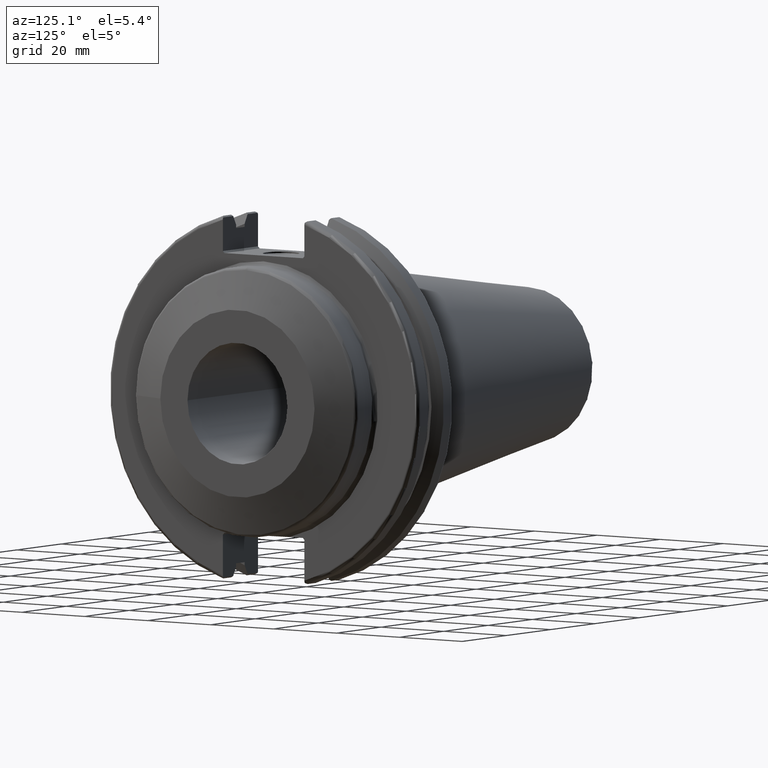
[diagram: clean part render]
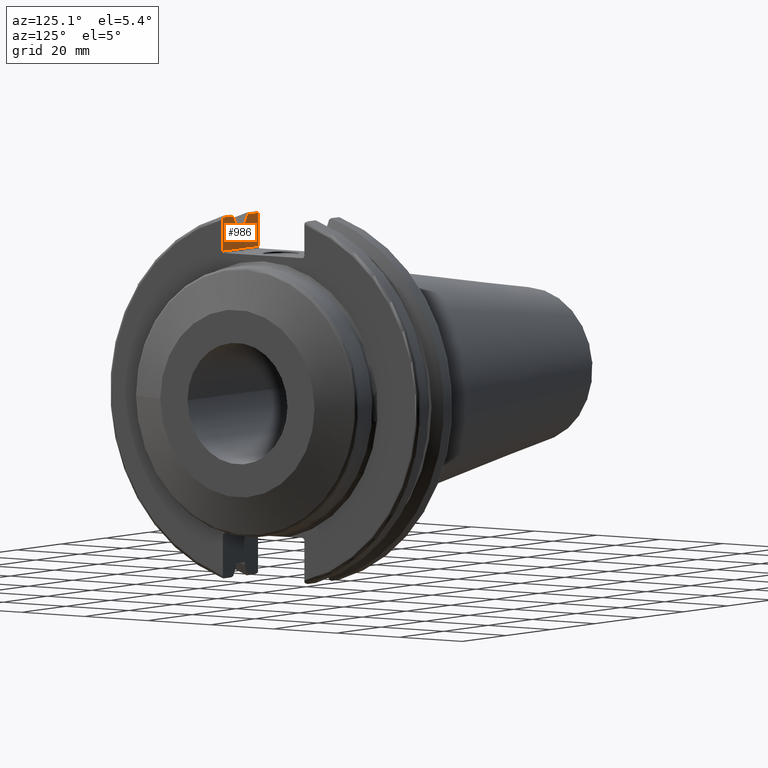
[diagram: same view with one face highlighted and labeled with its STEP entity id]
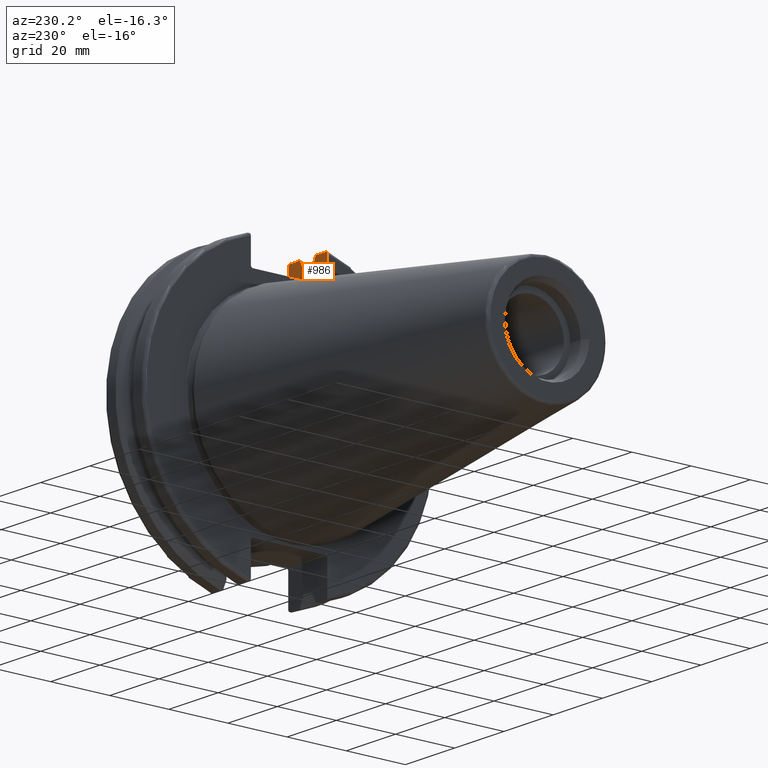
[diagram: same view with one face highlighted and labeled with its STEP entity id]
A machine part, auxiliary view. The second image highlights one B-rep face of the part: STEP entity #986.
A second angle (auxiliary view) of the same face is appended — the face is thin or edge-on in the first view.
In plain terms, the highlighted planar face has unit normal (-0, -1, 0).
Its self-contained STEP definition (entity closure, byte-faithful):
#18=(
BOUNDED_CURVE()
B_SPLINE_CURVE(2,(#1670,#1671,#1672),.UNSPECIFIED.,.F.,.F.)
B_SPLINE_CURVE_WITH_KNOTS((3,3),(0.,0.275823910673799),.UNSPECIFIED.)
CURVE()
GEOMETRIC_REPRESENTATION_ITEM()
RATIONAL_B_SPLINE_CURVE((1.,1.00038235574547,1.00012873636808))
REPRESENTATION_ITEM('')
);
#19=(
BOUNDED_CURVE()
B_SPLINE_CURVE(2,(#1680,#1681,#1682),.UNSPECIFIED.,.F.,.F.)
B_SPLINE_CURVE_WITH_KNOTS((3,3),(0.0558332664513841,0.331657177124504),
 .UNSPECIFIED.)
CURVE()
GEOMETRIC_REPRESENTATION_ITEM()
RATIONAL_B_SPLINE_CURVE((1.0001287363678,1.00038235574463,1.))
REPRESENTATION_ITEM('')
);
#43=PLANE('',#1091);
#73=B_SPLINE_CURVE_WITH_KNOTS('',3,(#1633,#1634,#1635,#1636,#1637,#1638),
 .UNSPECIFIED.,.F.,.F.,(4,2,4),(0.452859694247731,0.491383469061936,0.506034728678978),
 .UNSPECIFIED.);
#76=B_SPLINE_CURVE_WITH_KNOTS('',3,(#1661,#1662,#1663,#1664,#1665,#1666),
 .UNSPECIFIED.,.F.,.F.,(4,2,4),(0.0976892167532858,0.112000071948292,0.150881870548587),
 .UNSPECIFIED.);
#96=LINE('',#1508,#164);
#121=LINE('',#1616,#189);
#125=LINE('',#1659,#193);
#126=LINE('',#1668,#194);
#127=LINE('',#1674,#195);
#128=LINE('',#1676,#196);
#129=LINE('',#1678,#197);
#130=LINE('',#1683,#198);
#164=VECTOR('',#1220,10.);
#189=VECTOR('',#1263,10.);
#193=VECTOR('',#1275,10.);
#194=VECTOR('',#1276,10.);
#195=VECTOR('',#1277,10.);
#196=VECTOR('',#1278,10.);
#197=VECTOR('',#1279,10.);
#198=VECTOR('',#1280,10.);
#256=FACE_OUTER_BOUND('',#316,.T.);
#316=EDGE_LOOP('',(#761,#762,#763,#764,#765,#766,#767,#768,#769,#770,#771,
#772));
#426=VERTEX_POINT('',#1504);
#428=VERTEX_POINT('',#1507);
#458=VERTEX_POINT('',#1613);
#459=VERTEX_POINT('',#1615);
#464=VERTEX_POINT('',#1632);
#467=VERTEX_POINT('',#1660);
#468=VERTEX_POINT('',#1667);
#469=VERTEX_POINT('',#1669);
#470=VERTEX_POINT('',#1673);
#471=VERTEX_POINT('',#1675);
#472=VERTEX_POINT('',#1677);
#473=VERTEX_POINT('',#1679);
#534=EDGE_CURVE('',#426,#428,#96,.T.);
#571=EDGE_CURVE('',#458,#459,#121,.T.);
#577=EDGE_CURVE('',#459,#464,#73,.T.);
#581=EDGE_CURVE('',#428,#458,#125,.T.);
#582=EDGE_CURVE('',#467,#426,#76,.T.);
#583=EDGE_CURVE('',#468,#467,#126,.T.);
#584=EDGE_CURVE('',#469,#468,#18,.T.);
#585=EDGE_CURVE('',#470,#469,#127,.T.);
#586=EDGE_CURVE('',#471,#470,#128,.T.);
#587=EDGE_CURVE('',#472,#471,#129,.T.);
#588=EDGE_CURVE('',#473,#472,#19,.T.);
#589=EDGE_CURVE('',#464,#473,#130,.T.);
#761=ORIENTED_EDGE('',*,*,#577,.F.);
#762=ORIENTED_EDGE('',*,*,#571,.F.);
#763=ORIENTED_EDGE('',*,*,#581,.F.);
#764=ORIENTED_EDGE('',*,*,#534,.F.);
#765=ORIENTED_EDGE('',*,*,#582,.F.);
#766=ORIENTED_EDGE('',*,*,#583,.F.);
#767=ORIENTED_EDGE('',*,*,#584,.F.);
#768=ORIENTED_EDGE('',*,*,#585,.F.);
#769=ORIENTED_EDGE('',*,*,#586,.F.);
#770=ORIENTED_EDGE('',*,*,#587,.F.);
#771=ORIENTED_EDGE('',*,*,#588,.F.);
#772=ORIENTED_EDGE('',*,*,#589,.F.);
#986=ADVANCED_FACE('',(#256),#43,.F.);
#1091=AXIS2_PLACEMENT_3D('',#1658,#1273,#1274);
#1220=DIRECTION('',(0.,0.,-1.));
#1263=DIRECTION('',(0.,0.,1.));
#1273=DIRECTION('center_axis',(-1.31581988103722E-16,-1.,0.));
#1274=DIRECTION('ref_axis',(1.,-1.31581988103722E-16,0.));
#1275=DIRECTION('',(1.,-1.31581988103722E-16,0.));
#1276=DIRECTION('',(-1.,1.31581988103722E-16,0.));
#1277=DIRECTION('',(0.,0.,1.));
#1278=DIRECTION('',(-1.,0.,0.));
#1279=DIRECTION('',(0.,0.,-1.));
#1280=DIRECTION('',(-1.,1.31581988103722E-16,0.));
#1504=CARTESIAN_POINT('',(3.175,-12.95,46.4407434937254));
#1507=CARTESIAN_POINT('',(3.175,-12.95,38.219));
#1508=CARTESIAN_POINT('',(3.175,-12.95,18.8595));
#1613=CARTESIAN_POINT('',(19.05,-12.95,38.219));
#1615=CARTESIAN_POINT('',(19.05,-12.95,46.4407434937254));
#1616=CARTESIAN_POINT('',(19.05,-12.95,18.8595));
#1632=CARTESIAN_POINT('',(18.9055020570566,-12.95,46.9780755322918));
#1633=CARTESIAN_POINT('Ctrl Pts',(19.05,-12.95,46.4407434937254));
#1634=CARTESIAN_POINT('Ctrl Pts',(19.05,-12.95,46.5691560764394));
#1635=CARTESIAN_POINT('Ctrl Pts',(19.0209992543299,-12.95,46.7204975987179));
#1636=CARTESIAN_POINT('Ctrl Pts',(18.9549831813775,-12.95,46.8849952622217));
#1637=CARTESIAN_POINT('Ctrl Pts',(18.9322353702005,-12.95,46.9322596399785));
#1638=CARTESIAN_POINT('Ctrl Pts',(18.9055020570566,-12.95,46.9780755322918));
#1658=CARTESIAN_POINT('Origin',(3.175,-12.95,37.719));
#1659=CARTESIAN_POINT('',(10.63125,-12.95,38.219));
#1660=CARTESIAN_POINT('',(3.31949794294344,-12.95,46.9780755322918));
#1661=CARTESIAN_POINT('Ctrl Pts',(3.31949794294344,-12.95,46.9780755322918));
#1662=CARTESIAN_POINT('Ctrl Pts',(3.29341556483839,-12.95,46.9333752207329));
#1663=CARTESIAN_POINT('Ctrl Pts',(3.27115672912336,-12.95,46.887363294568));
#1664=CARTESIAN_POINT('Ctrl Pts',(3.20453530071253,-12.95,46.7230464903732));
#1665=CARTESIAN_POINT('Ctrl Pts',(3.175,-12.95,46.5703494890597));
#1666=CARTESIAN_POINT('Ctrl Pts',(3.175,-12.95,46.4407434937254));
#1667=CARTESIAN_POINT('',(7.88638960562424,-12.95,46.9780755322918));
#1668=CARTESIAN_POINT('',(5.39149548297564,-12.95,46.9780755322918));
#1669=CARTESIAN_POINT('',(9.2191,-12.95,44.5791147973604));
#1670=CARTESIAN_POINT('Ctrl Pts',(9.2191,-12.95,44.5791147973604));
#1671=CARTESIAN_POINT('Ctrl Pts',(8.57020449054213,-12.95,45.7494966802443));
#1672=CARTESIAN_POINT('Ctrl Pts',(7.88638960562424,-12.95,46.9780755322918));
#1673=CARTESIAN_POINT('',(9.2191,-12.95,43.7678716897452));
#1674=CARTESIAN_POINT('',(9.2191,-12.95,18.8595));
#1675=CARTESIAN_POINT('',(13.0491,-12.95,43.7678716897452));
#1676=CARTESIAN_POINT('',(11.1341,-12.95,43.7678716897452));
#1677=CARTESIAN_POINT('',(13.0491,-12.95,44.5791147973604));
#1678=CARTESIAN_POINT('',(13.0491,-12.95,18.8595));
#1679=CARTESIAN_POINT('',(14.3818103943757,-12.95,46.9780755322918));
#1680=CARTESIAN_POINT('Ctrl Pts',(14.3818103943757,-12.95,46.9780755322917));
#1681=CARTESIAN_POINT('Ctrl Pts',(13.6979955094656,-12.95,45.7494966802583));
#1682=CARTESIAN_POINT('Ctrl Pts',(13.0491,-12.95,44.5791147973604));
#1683=CARTESIAN_POINT('',(16.8551045170244,-12.95,46.9780755322918));